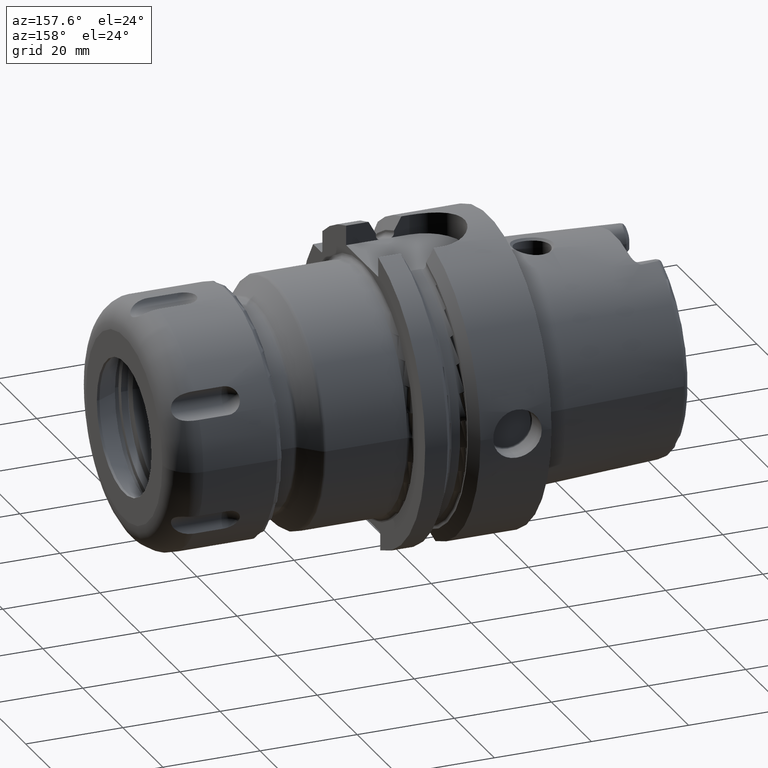
[diagram: clean part render]
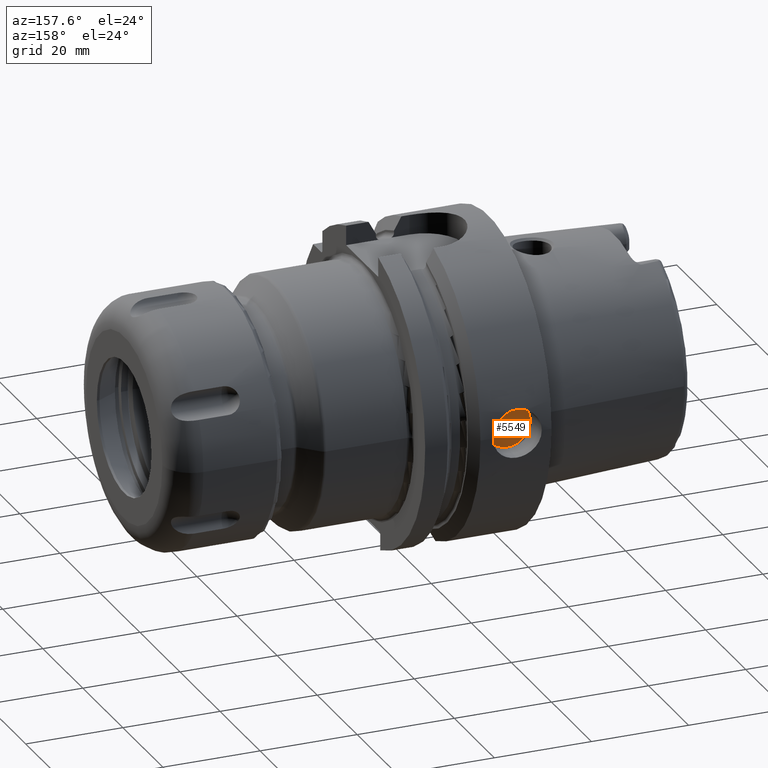
[diagram: same view with one face highlighted and labeled with its STEP entity id]
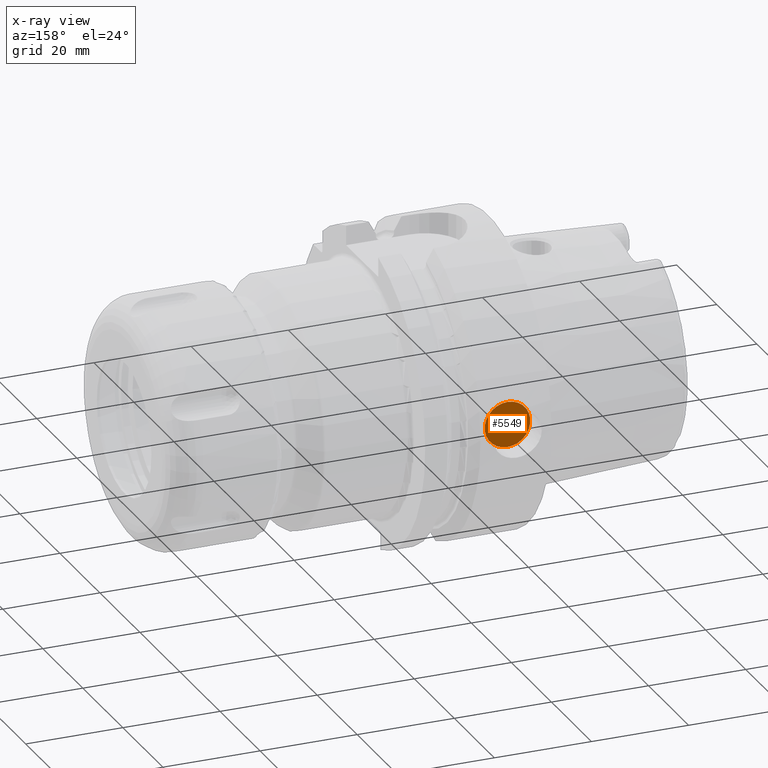
[diagram: x-ray of the same camera — body ghosted, the highlighted face saturated]
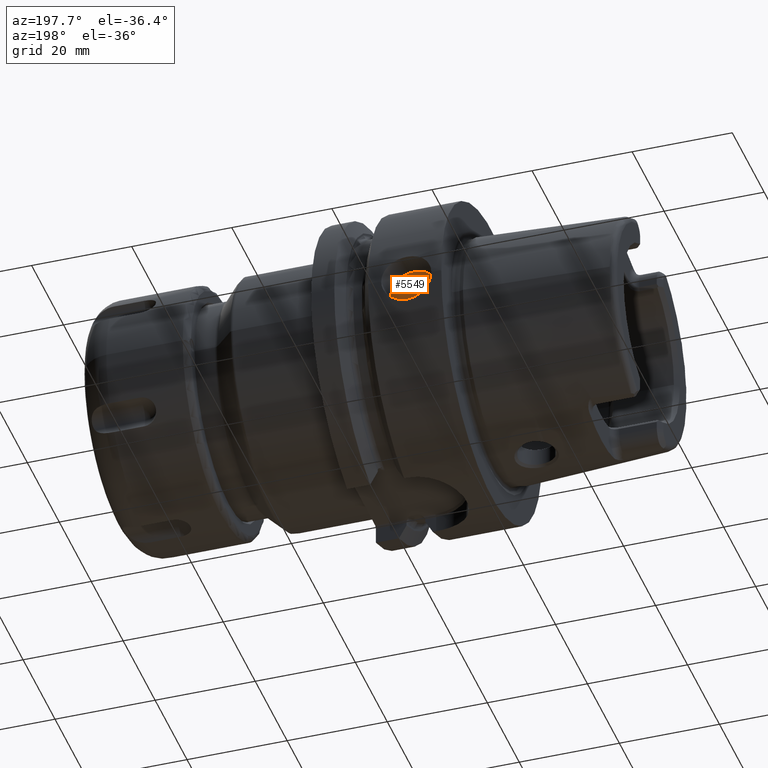
[diagram: same view with one face highlighted and labeled with its STEP entity id]
A machine part, auxiliary view. The second image highlights one B-rep face of the part: STEP entity #5549.
The next image is the same camera in x-ray: the body ghosted, the highlighted face saturated — about 0% of this face is hidden behind the body in this view.
A second angle (auxiliary view) of the same face is appended — the face is thin or edge-on in the first view.
In plain terms, the highlighted planar face has unit normal (0, -1, 0).
Its self-contained STEP definition (entity closure, byte-faithful):
#2144=CARTESIAN_POINT('',(7.E0,2.650064308017E1,0.E0));
#2145=DIRECTION('',(0.E0,1.E0,0.E0));
#2146=DIRECTION('',(0.E0,0.E0,1.E0));
#2147=AXIS2_PLACEMENT_3D('',#2144,#2145,#2146);
#2149=CARTESIAN_POINT('',(7.E0,2.650064308017E1,0.E0));
#2150=DIRECTION('',(0.E0,-1.E0,0.E0));
#2151=DIRECTION('',(0.E0,0.E0,1.E0));
#2152=AXIS2_PLACEMENT_3D('',#2149,#2150,#2151);
#2908=CARTESIAN_POINT('',(7.E0,2.650064308017E1,4.7E0));
#2910=VERTEX_POINT('',#2908);
#2912=CARTESIAN_POINT('',(7.E0,2.650064308017E1,-4.7E0));
#2914=VERTEX_POINT('',#2912);
#5540=CARTESIAN_POINT('',(7.E0,2.650064308017E1,0.E0));
#5541=DIRECTION('',(0.E0,-1.E0,0.E0));
#5542=DIRECTION('',(0.E0,0.E0,1.E0));
#5543=AXIS2_PLACEMENT_3D('',#5540,#5541,#5542);
#5544=PLANE('',#5543);
#5545=ORIENTED_EDGE('',*,*,#5533,.F.);
#5546=ORIENTED_EDGE('',*,*,#5522,.T.);
#5547=EDGE_LOOP('',(#5545,#5546));
#5548=FACE_OUTER_BOUND('',#5547,.F.);
#5549=ADVANCED_FACE('',(#5548),#5544,.F.);
#2148=CIRCLE('',#2147,4.7E0);
#2153=CIRCLE('',#2152,4.7E0);
#5522=EDGE_CURVE('',#2910,#2914,#2153,.T.);
#5533=EDGE_CURVE('',#2910,#2914,#2148,.T.);